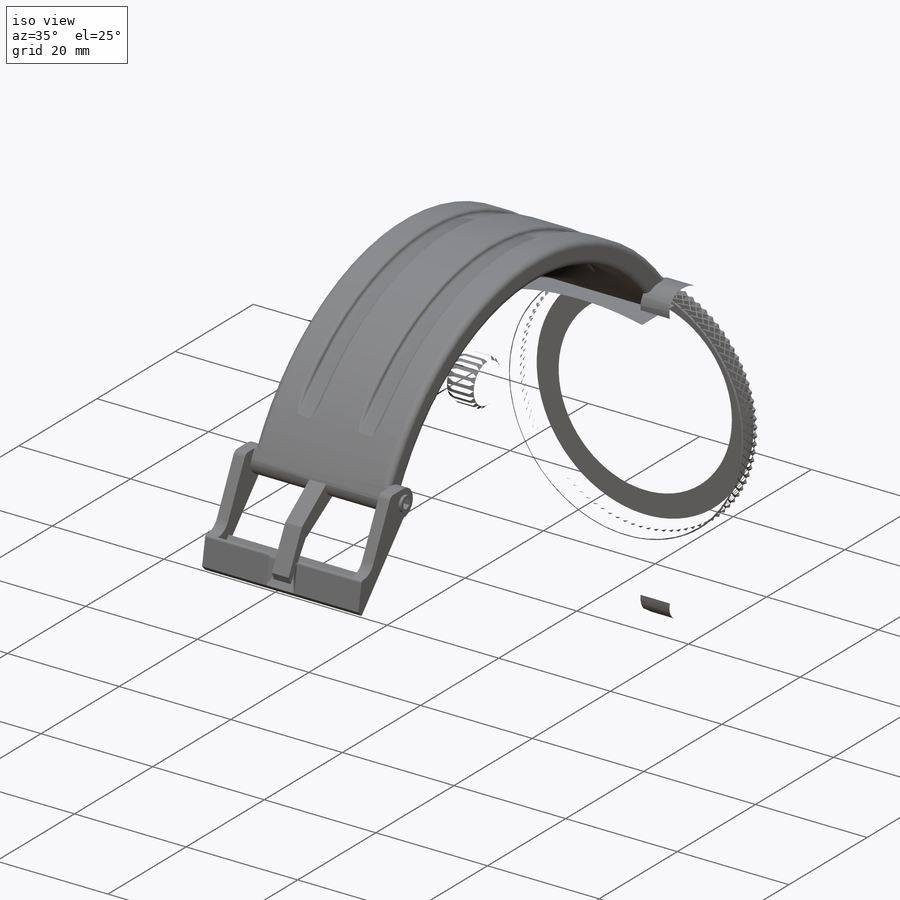
[diagram: iso view]
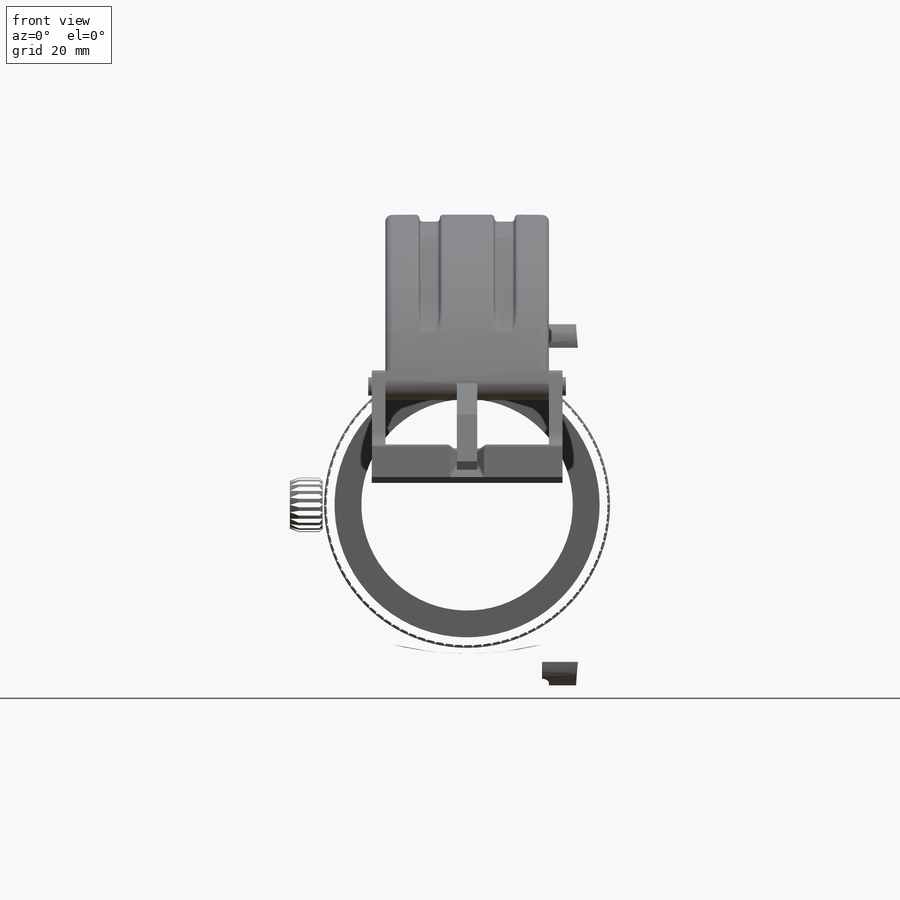
[diagram: front view]
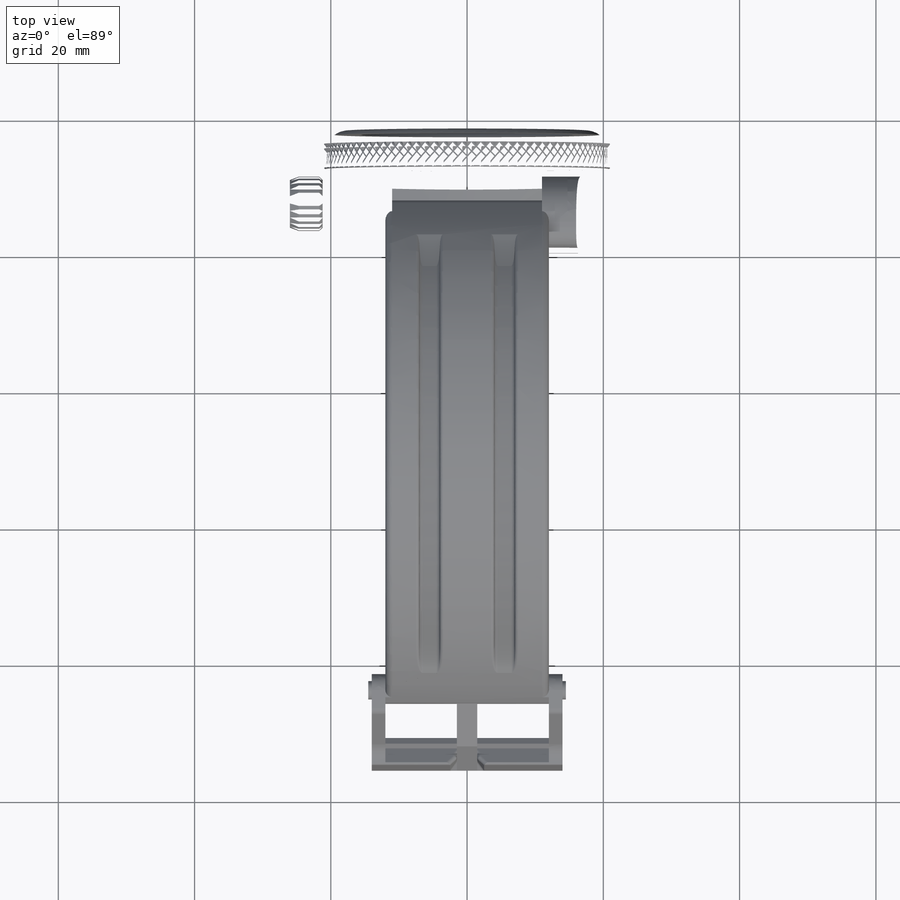
[diagram: top view]
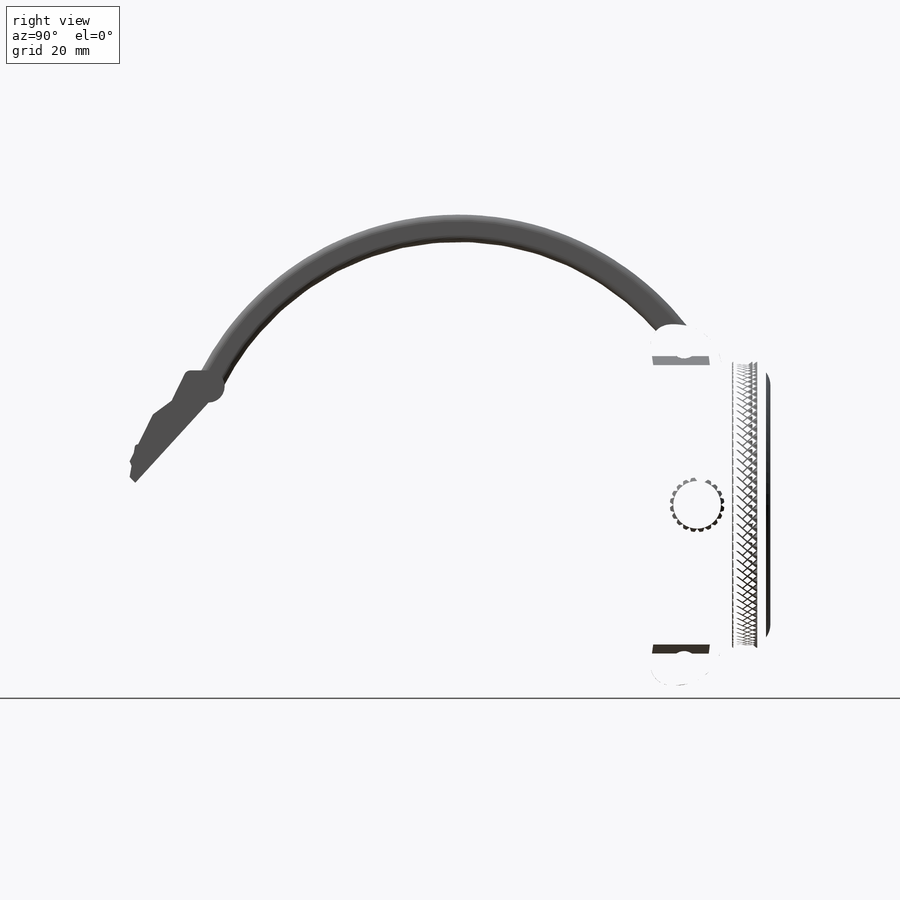
[diagram: right view]
SOLIDWORKS PART (.sldprt)
format: sldprt  version: not decoded by parser v0  size: 12,173,824 bytes
history: native  units: mm
features: sketch x57, extrude x29, cut_extrude x19, plane x14, fillet x14, pattern_circular x7, chamfer x6, mirror x5, revolve x2, material x1 (+16 scaffold rows collapsed)
feature tree (170):
  scaffold x16  (default folders/planes/origin — collapsed)
  material  "Material <not specified>"
  plane  "Plane11"  Offset=6mm
  sketch  "Sketch1"  dims[c1.D1=~35.762583mm c1.D6=~33.530222mm c1.D7=~66.470087mm c2.D1=~46.069231mm c2.D4=~68.33584mm c2.D6=~26.432101mm c2.D2=26.5mm c2.D3=11.0mm c3.D4=16.0mm c3.D2=16.0mm c4.D4=~18.919987mm c4.D5=16.0mm c4.D6=~18.919987mm c4.D2=16.0mm c5.D4=~18.919987mm c5.D5=26.5mm c5.D6=26.5mm c6.D5=26.5mm c6.D8=~13.668227mm c6.D9=~82.464041mm c6.D10=~13.668227mm c6.D11=~82.464041mm c7.D8=~13.668227mm c7.D9=~16.730002mm c7.D10=~17.298844mm c7.D11=~16.730002mm c7.D12=~17.298844mm c8.D9=~16.730002mm c8.D7=~5.542064mm c8.D8=~19.086787mm c9.D9=84.2342mm c9.D10=~5.542064mm c9.D11=~19.086787mm c9.D12=84.2342mm c9.D7=~5.542064mm c9.D8=~19.086787mm c10.D9=20.5mm c10.D10=~24.236719mm c10.D11=20.5mm c10.D12=~24.236719mm c11.D9=20.5mm]
  extrude  "Boss-Extrude1"  Depth=15mm
  sketch  "Sketch88"  dims[c1.D1=~7.791955mm c1.D2=~6.355972mm c2.D1=~9.61318mm c2.D2=~11.211552mm c2.D3=~6.355972mm c3.D1=~31.295259mm c3.D3=~17.105172mm c4.D1=18.0mm c4.D2=12.0mm c5.D1=~28.820973mm c5.D3=~28.563878mm c5.D4=~28.753636mm c5.D5=~35.85878mm c5.D6=36.1748mm c5.D7=~38.622425mm c5.D8=~9.714456mm c5.D9=~12.089513mm c5.D10=17.5mm c5.D11=~20.776308mm c5.D12=26.5mm c5.D13=~32.223692mm c5.D14=35.5mm c5.D15=~40.910487mm c5.D16=~40.977574mm c5.D17=~43.285544mm c6.D8=~9.714456mm c6.D9=~20.776308mm c6.D4=~4.329812mm c6.D5=~6.563878mm c6.D6=~6.753636mm c6.D7=~10.815752mm c7.D8=~13.502075mm c7.D9=~16.622425mm c7.D10=~16.905629mm c7.D11=~7.33179mm c7.D12=~12.089513mm c7.D13=16.7452mm c7.D14=~20.96269mm c7.D15=~23.840678mm c7.D16=26.5mm c7.D17=~29.159322mm c7.D18=~32.03731mm c7.D19=36.2548mm c7.D20=~40.910487mm c7.D21=~40.977574mm c7.D22=~45.66821mm c8.D11=~7.33179mm c8.D12=4.3mm c8.D4=~10.815752mm c8.D7=~13.235661mm c8.D8=~27.371625mm c8.D9=~17.762778mm c9.D4=~10.815752mm c9.D7=~13.235661mm c9.D8=~27.371625mm c9.D9=~12.089513mm c9.D10=~13.746144mm c9.D11=22.2mm c9.D12=26.5mm c9.D13=30.8mm c9.D14=~39.253856mm c9.D15=~40.910487mm c10.D9=~12.089513mm c10.D10=~13.746144mm]
  sketch  "Sketch3"  dims[c1.D2=~151.77016mm c1.D3=~161.77016mm c2.D2=~151.77016mm c2.D1=~151.77016mm c3.D2=~161.77016mm c3.D3=~18.936839mm c3.D4=~4.376717mm c3.D5=~31.176383mm c3.D6=~29.416869mm c4.D3=~10.146161mm c4.D4=~18.936839mm c4.D5=~4.376717mm c4.D6=~149.438721mm c5.D3=~10.146161mm c5.D6=~31.176383mm c5.D7=~29.416869mm c5.D1=10.0mm]
  cut_extrude  "Cut-Extrude2"  Depth=50mm
  fillet  "Fillet1"  Radius=6.8mm
  plane  "Plane1"  Offset=12.5mm
  sketch  "Sketch20"  dims[D1=30.0mm]
  extrude  "Boss-Extrude14"  Depth=3mm
  sketch  "Sketch21"  dims[c1.D1=~10.607131mm c1.D2=~1.837456mm c1.D3=~3.620643mm c1.D4=~13.947959mm c1.D5=~9.556168mm c1.D6=~1.837456mm c1.D7=~2.004497mm c1.D8=~14.03148mm c2.D1=~10.607131mm c2.D2=~1.837456mm c2.D3=~3.620643mm c2.D4=~13.947959mm c2.D5=~9.556168mm c2.D6=~1.837456mm c2.D7=~2.004497mm c2.D8=~14.03148mm]
  extrude  "Boss-Extrude15"  Depth=0.5mm
  sketch  "Sketch22"  dims[D1=1.0mm D2=~14.358073mm]
  extrude  "Boss-Extrude16"  Depth=0.5mm
  sketch  "Sketch23"  dims[c1.D1=~42.592127mm c1.D2=~38.592127mm c1.D3=2.0mm c2.D1=~42.592127mm c2.D2=~38.592127mm c2.D3=~3.850802mm c2.D4=~5.482585mm c2.D5=~7.114368mm c2.D6=~27.636192mm c3.D3=~3.850802mm c3.D4=~5.482585mm c3.D1=2.0mm c3.D2=2.0mm]
  plane  "Plane2"  Offset=21mm
  extrude  "Boss-Extrude20"  Depth=24mm
  sketch  "Sketch29"  dims[D1=40.0mm]
  extrude  "Boss-Extrude21"  Depth=4mm
  fillet  "Fillet2"  Radius=3mm
  fillet  "Fillet3"  Radius=2mm
  sketch  "Sketch31"  dims[c1.D1=30.0mm c1.D2=~31.366332mm c1.D3=~38.540354mm c2.D2=1.0mm c2.D3=1.0mm]
  extrude  "Boss-Extrude22"  Depth=1mm
  sketch  "Sketch32"  dims[c1.D1=~18.795136mm c1.D2=~4.180444mm c1.D3=~4.180444mm c2.D2=~4.180444mm c2.D3=~16.182952mm]
  extrude  "Boss-Extrude23"  Depth=0.8mm
  sketch  "Sketch33"  dims[c1.D1=2.6mm c1.D3=4.2mm c2.D1=16.0mm c2.D4=19.0mm c3.D1=~18.852001mm c3.D4=~16.060435mm c4.D1=~2.986113mm c4.D2=~4.180444mm c4.D3=~18.324329mm c4.D4=~35.790943mm]
  extrude  "Boss-Extrude24"  Depth=0.8mm
  pattern_circular  "CirPattern1"  Count=4 Angle=360deg
  sketch  "Sketch35"  dims[c1.D1=19.0mm c2.D1=30.0deg c2.D2=~8.874953mm c2.D3=~8.886698mm c2.D4=~9.394858mm c2.D5=~10.640532mm c2.D6=~11.148692mm c3.D3=~8.886698mm c3.D4=~9.394858mm c3.D5=~10.640532mm c3.D6=~1.764383mm c3.D1=~6.092011mm c3.D2=~6.103756mm c4.D3=~6.611916mm c4.D4=~7.85759mm c4.D5=~8.36575mm c4.D6=~15.99776mm c4.D2=~6.103756mm c5.D3=~6.611916mm c5.D4=~7.85759mm c5.D5=~29.510175mm c5.D7=~29.803561mm c5.D8=~32.547905mm c5.D9=~32.557706mm c5.D10=~32.84129mm c6.D5=~29.510175mm c6.D7=~29.803561mm]
  extrude  "Boss-Extrude28"  Depth=0.8mm
  pattern_circular  "CirPattern2"  Count=60 Angle=360deg
  sketch  "Sketch37"
  cut_extrude  "Cut-Extrude3"  Depth=0.8mm
  plane  "Plane3"  Offset=22mm
  sketch  "Sketch39"  dims[D1=8.0mm D2=~7.382517mm]
  extrude  "Boss-Extrude29"  Depth=0.8mm
  sketch  "Sketch40"  dims[D1=4.0mm]
  extrude  "Boss-Extrude30"  Depth=10.8mm
  chamfer  "Chamfer1"  Distance=0.5mm Angle=45deg
  chamfer  "Chamfer2"  Distance=0.5mm Angle=69deg
  sketch  "Sketch46"  dims[D1=28.0mm]
  cut_extrude  "Cut-Extrude6"  Depth=1.8mm
  chamfer  "Chamfer3"  Distance=1mm Angle=45deg
  sketch  "Sketch47"  dims[D1=31.0mm D2=39.0mm]
  cut_extrude  "Cut-Extrude7"  Depth=1.8mm
  plane  "Plane4"  Offset=0mm
  sketch  "Sketch48"  dims[c1.D1=~3.174287mm c1.D2=~14.963793mm c1.D3=~18.137529mm c1.D4=~15.517191mm c1.D5=~17.426052mm c1.D6=~17.485187mm c1.D7=~17.544322mm c1.D8=~19.453183mm c2.D4=~15.517191mm]
  revolve  "Revolve3"  Angle=360deg
  sketch  "Sketch49"  dims[c1.D1=~53.210042mm c1.D2=~16.137097mm c1.D3=~19.077421mm c1.D4=~34.09535mm c2.D3=~19.077421mm c2.D2=~16.137097mm c3.D3=17.5mm c3.D4=~19.077421mm c3.D5=~34.09535mm]
  revolve  "Revolve4"  Angle=360deg
  sketch  "Sketch50"  dims[c1.D2=~11.480503mm c1.D1=~12.65882mm c2.D1=30.0deg c2.D3=~4.194227mm c2.D4=~4.180444mm c2.D5=~13.869687mm]
  extrude  "Boss-Extrude33"  Depth=0.5mm
  sketch  "Sketch51"  dims[D1=3.5mm D2=~25.349278mm]
  extrude  "Boss-Extrude34"  Depth=0.5mm
  pattern_circular  "CirPattern4"  Count=4 Angle=90deg
  sketch  "Sketch52"  dims[c1.D1=15.0mm c2.D1=30.0deg c2.D2=~8.79252mm c2.D3=~9.727182mm c2.D4=~10.45357mm c2.D5=~11.388232mm c3.D2=~8.79252mm c3.D3=~9.727182mm c3.D4=~10.45357mm]
  extrude  "Boss-Extrude35"  Depth=0.5mm
  pattern_circular  "CirPattern5"  Count=12 Angle=30deg
  sketch  "Sketch53"  dims[D1=1.0mm]
  extrude  "Boss-Extrude36"  Depth=0.5mm
  sketch  "Sketch54"  dims[c1.D1=~0.461333mm c1.D2=~1.160251mm c1.D3=~0.720455mm c1.D4=~0.858406mm c1.D5=~5.991299mm c1.D6=~6.277762mm c1.D7=~6.619077mm c2.D3=~0.720455mm c2.D4=~0.858406mm]
  extrude  "Boss-Extrude37"  Depth=0.4mm
  sketch  "Sketch55"  dims[c1.D1=~0.240212mm c1.D2=~0.664833mm c1.D3=~0.165502mm c1.D4=~0.492672mm c1.D5=~4.308957mm c1.D6=~4.795551mm c1.D7=~5.21446mm c2.D3=~0.165502mm c2.D4=~0.492672mm]
  cut_extrude  "Cut-Extrude8"  Depth=0.15mm
  sketch  "Sketch56"  dims[c1.D1=~0.910844mm c1.D2=~0.36434mm c1.D3=~6.859701mm c1.D4=~7.112775mm c1.D5=~7.389727mm c1.D6=~0.028078mm c1.D7=~1.353134mm c2.D3=~6.859701mm c2.D4=~7.112775mm]
  extrude  "Boss-Extrude38"  Depth=0.4mm
  sketch  "Sketch57"  dims[c1.D1=~0.179242mm c1.D2=~0.540061mm c1.D3=~2.646199mm c1.D4=~3.022258mm c1.D5=~3.431944mm c1.D6=~8.341098mm c1.D7=~8.601881mm c2.D3=~2.646199mm]
  cut_extrude  "Cut-Extrude9"  Depth=0.15mm
  sketch  "Sketch58"  dims[c1.D1=1.0mm c1.D2=1.2mm c1.D3=0.14mm c2.D1=~0.12699mm c2.D4=~6.811364mm c2.D5=~6.931841mm c2.D6=~7.013212mm c2.D7=~7.51097mm c2.D8=~7.983572mm c2.D9=~8.130903mm c2.D10=~8.705363mm c2.D11=~16.429171mm c2.D12=~16.520117mm c2.D13=~16.616213mm c3.D4=~6.811364mm c3.D5=~6.931841mm c3.D6=~7.013212mm c3.D7=~7.983572mm c3.D8=~8.705363mm c3.D9=~16.429171mm]
  extrude  "Boss-Extrude39"  Depth=0.3mm
  sketch  "Sketch59"  dims[c1.D1=0.14mm c1.D2=~0.072459mm c1.D3=~0.038453mm c1.D4=~0.498214mm c1.D5=~0.584942mm c1.D6=~0.70187mm c1.D7=~0.448766mm c1.D8=~8.357603mm c1.D9=~8.464351mm c2.D3=~0.038453mm]
  cut_extrude  "Cut-Extrude10"  Depth=0.15mm
  sketch  "Sketch60"  dims[D1=0.6mm]
  extrude  "Boss-Extrude40"  Depth=0.15mm
  plane  "Plane5"  Offset=11mm
  sketch  "Sketch65"  dims[D1=39.0mm]
  sketch  "Sketch68"  dims[c1.D1=~54.376689mm c1.D2=~84.079949mm c2.D1=~54.376689mm c2.D2=~15.372334mm c2.D3=~15.372334mm c3.D2=~15.372334mm c3.D1=~54.376689mm c4.D2=~69.228319mm c4.D3=~84.079949mm c4.D1=~54.376689mm c5.D2=~69.228319mm c5.D3=~15.372334mm c5.D4=~15.372334mm c6.D3=~15.372334mm]
  cut_extrude  "Cut-Extrude13"  Depth=41mm
  sketch  "Sketch69"  dims[c1.D1=~2.240461mm c1.D2=~75.060625mm c1.D3=~77.230869mm c1.D4=~79.392533mm c2.D2=~66.88535mm c2.D3=~71.208281mm c2.D4=~72.61295mm c2.D5=~74.783194mm c2.D6=~76.944858mm c2.D7=~20.144131mm c2.D8=~20.700648mm c2.D9=~20.733092mm c3.D7=~20.144131mm c3.D1=~20.700648mm c3.D5=~20.733092mm]
  extrude  "Boss-Extrude44"  Depth=24mm
  fillet  "Fillet6"  Radius=37mm
  fillet  "Fillet7"  Radius=9mm
  fillet  "Fillet8"  Radius=2mm
  sketch  "Sketch71"  dims[c1.D1=0.4mm c1.D2=1.0mm c1.D3=~2.366263mm c1.D4=~2.773155mm c1.D5=~70.79976mm c1.D6=~71.698289mm c1.D7=~75.973216mm c1.D8=~78.464974mm c1.D9=~78.58387mm c1.D10=~78.601019mm c1.D11=~78.932177mm c1.D12=~78.995301mm c1.D13=~79.756186mm c2.D5=~70.79976mm c2.D6=~71.698289mm c2.D7=~75.973216mm c2.D8=~78.58387mm c2.D9=~21.397399mm]
  extrude  "Boss-Extrude45"  Depth=2mm
  mirror  "Mirror1"
  sketch  "Sketch72"  dims[D1=~6.838186mm D2=~7.670342mm D3=~8.35917mm]
  extrude  "Boss-Extrude46"  Depth=26mm
  sketch  "Sketch73"
  sketch  "Sketch74"
  plane  "Plane6"
  sketch  "Sketch75"  dims[D1=3.0mm]
  sketch  "Sketch76"
  cut_extrude  "Cut-Extrude16"  Depth=21mm
  chamfer  "Chamfer5"  Distance=1mm Angle=45deg
  fillet  "Fillet9"  Radius=0.5mm
  sketch  "Sketch77"  dims[c1.D1=~1.535724mm c1.D2=~63.50842mm c1.D3=~65.137605mm c1.D4=~65.323368mm c1.D5=~71.226338mm c1.D6=~72.491904mm c1.D7=~75.910396mm c1.D8=~6.380381mm c2.D2=~63.50842mm c2.D3=~64.323012mm c2.D4=~65.137605mm c2.D5=~65.323368mm c2.D6=~71.226338mm c2.D7=~72.491904mm c2.D8=~75.281733mm c2.D9=~75.910396mm c2.D10=~4.929697mm c2.D11=~6.380381mm c2.D12=~11.241313mm c2.D13=~13.263937mm c2.D14=~16.070456mm c2.D15=~17.372334mm c2.D16=~18.537553mm c2.D17=~18.674212mm c3.D12=~11.241313mm c3.D8=~71.524052mm c3.D10=~75.379088mm c3.D13=~5.15435mm c3.D14=~11.154137mm]
  extrude  "Boss-Extrude49"  Depth=3mm
  fillet  "Fillet10"  Radius=1mm
  fillet  "Fillet11"  Radius=1mm
  sketch  "Sketch78"  dims[D1=2.7mm]
  extrude  "Boss-Extrude50"  Depth=0.5mm
  sketch  "Sketch79"  dims[D1=~1.528405mm]
  cut_extrude  "Cut-Extrude17"  Depth=1mm
  mirror  "Mirror2"
  plane  "Plane7"  Offset=51mm
  sketch  "Sketch80"  dims[c1.D1=4.0mm c1.D2=2.5mm c1.D3=~30.165049mm c1.D4=~31.415049mm c2.D3=~30.165049mm]
  cut_extrude  "Cut-Extrude18"  Depth=21mm
  pattern_circular  "CirPattern7"  Count=14 Angle=360deg
  sketch  "Sketch81"  dims[D1=~39.557842mm D2=~41.973188mm]
  extrude  "Boss-Extrude51"  Depth=5mm
  sketch  "Sketch82"  dims[D1=2.3mm]
  fillet  "Fillet12"  Radius=0.2mm
  plane  "Plane8"  Offset=31mm
  sketch  "Sketch83"  dims[D1=3.5mm]
  cut_extrude  "Cut-Extrude19"  Depth=16mm
  mirror  "Mirror3"
  chamfer  "Chamfer6"  Distance=0.4mm Angle=45deg
  sketch  "Sketch84"  dims[c1.D1=~0.983807mm c1.D2=~0.983807mm c2.D1=~0.983807mm c2.D2=~0.568001mm c2.D3=~1.136002mm c2.D4=~0.568001mm c2.D5=~1.136002mm c2.D6=~45.805124mm c2.D7=~46.373125mm c2.D8=~47.509127mm c2.D9=~48.077128mm c3.D2=~0.568001mm c3.D3=~1.136002mm c3.D4=~45.805124mm c3.D5=~47.509127mm]
  cut_extrude  "Cut-Extrude20"  Depth=2mm
  mirror  "Mirror4"
  plane  "Plane9"  Offset=7mm
  sketch  "Sketch85"  dims[c1.D1=~41.592127mm c1.D2=~39.592127mm c1.D3=~37.309768mm c1.D4=~44.700982mm c1.D5=~2.385032mm c1.D6=~4.168933mm c1.D7=~0.41118mm c1.D8=~1.315826mm c1.D9=~2.316279mm c1.D10=~3.533813mm c1.D11=~27.636192mm c1.D12=~55.00032mm c1.D13=~58.599261mm c1.D14=~64.73388mm c1.D15=~66.300384mm c1.D16=~67.028529mm c1.D17=~67.335228mm c1.D18=~67.904021mm c1.D19=~68.157902mm c1.D20=~68.381797mm c1.D21=~68.411784mm c1.D22=~70.457697mm c1.D23=~72.27305mm c2.D6=~4.168933mm c2.D10=~3.533813mm c2.D11=~55.00032mm c2.D12=~64.73388mm c2.D14=~0.825564mm c2.D16=~3.144453mm c2.D17=~30.212835mm c2.D24=~30.212835mm c3.D17=~30.212835mm]
  cut_extrude  "Cut-Extrude21"  Depth=3mm
  mirror  "Mirror5"
  fillet  "Fillet14"  Radius=0.5mm
  fillet  "Fillet15"  Radius=1mm
  plane  "Plane10"  Offset=10mm
  sketch  "Sketch86"  dims[D1=39.0mm D2=41.5mm]
  extrude  "Boss-Extrude52"  Depth=2.6mm
  plane  "Plane12"  Offset=20.6mm
  sketch  "Sketch101"  dims[c1.D1=3.2mm c1.D2=3.2mm c2.D1=~13.239446mm c2.D2=~13.522289mm c2.D3=~14.768735mm c2.D4=~15.97925mm c2.D5=~16.015182mm c2.D6=~16.298025mm c3.D1=~13.239446mm c3.D2=~13.522289mm c3.D5=~16.015182mm c3.D6=~1.387868mm c3.D7=~1.387868mm c4.D1=~13.239446mm c4.D2=~13.522289mm c4.D3=~14.768735mm c4.D4=~15.97925mm c4.D5=~16.015182mm c4.D6=~16.298025mm c5.D1=~13.239446mm c5.D2=~13.522289mm c5.D5=~16.015182mm c5.D6=~1.387868mm c5.D7=~1.387868mm c5.D3=0.1mm c5.D4=0.1mm]
  cut_extrude  "Cut-Extrude25"  Depth=0.5mm
  sketch  "Sketch102"  dims[c1.D1=~13.090645mm c1.D2=~13.388247mm c1.D3=~16.149223mm c1.D4=~16.365228mm c1.D5=~16.446826mm c2.D1=~13.090645mm c2.D2=~13.388247mm c2.D3=~16.149223mm c2.D5=~1.387868mm c2.D6=~1.313816mm c2.D7=~1.387868mm c3.D5=~1.387868mm c3.D6=~1.313816mm c3.D1=0.1mm c3.D2=0.1mm]
  cut_extrude  "Cut-Extrude26"  Depth=0.5mm
  pattern_circular  "CirPattern8"  Count=94 Angle=360deg
  plane  "Plane13"  Offset=3.5mm
  sketch  "Sketch105"  dims[D1=39.0mm D2=~42.680589mm]
  extrude  "Boss-Extrude53"  Depth=1.3mm
  fillet  "Fillet16"  Radius=0.25mm
  fillet  "Fillet17"  Radius=0.6mm
  sketch  "Sketch106"  dims[D1=38.0mm]
  cut_extrude  "Cut-Extrude29"  Depth=3mm
  sketch  "Sketch107"
  extrude  "Boss-Extrude54"  Depth=1.35mm
  chamfer  "Chamfer7"  Distance=0.5mm Angle=45deg
  sketch  "Sketch108"  dims[c1.D1=~0.438412mm c1.D2=~0.438412mm c2.D1=~0.438412mm c2.D2=~4.079618mm]
  cut_extrude  "Cut-Extrude30"  Depth=4.8mm
  pattern_circular  "CirPattern9"  Count=20 Angle=360deg
  plane  "Plane14"  Offset=7.6mm
  sketch  "Sketch109"  dims[c1.D1=0.3mm c1.D2=0.3mm c1.D3=0.3mm c1.D4=0.3mm c1.D5=0.3mm c1.D6=0.3mm c1.D7=0.3mm c1.D8=0.3mm c1.D9=0.3mm c1.D10=4.8mm c2.D1=21.7mm c2.D2=~21.848728mm c2.D3=~21.997455mm c2.D4=~22.297455mm c2.D5=~22.447455mm c2.D6=~22.597455mm c2.D7=~22.897455mm c2.D8=~23.047455mm c2.D9=~23.197455mm c2.D10=~23.497455mm c2.D11=~23.647455mm c2.D12=~23.797455mm c2.D13=~24.097455mm c2.D14=~24.247455mm c2.D15=~24.397455mm c2.D16=~24.697455mm c3.D1=21.7mm c3.D2=~21.848728mm c3.D3=~22.297455mm c3.D4=~22.447455mm c3.D5=3.5mm c3.D6=~3.983263mm c3.D7=~4.366334mm]
  sketch  "Sketch110"  dims[D1=5.4mm]
  cut_extrude  "Cut-Extrude31"  Depth=0.4mm
decode coverage: 129 of 139 modeling features carry decoded parameters
note: ~ marks probable driven/reference dimensions
note: suppression state not decoded; provenance and decode notes live in map.json
